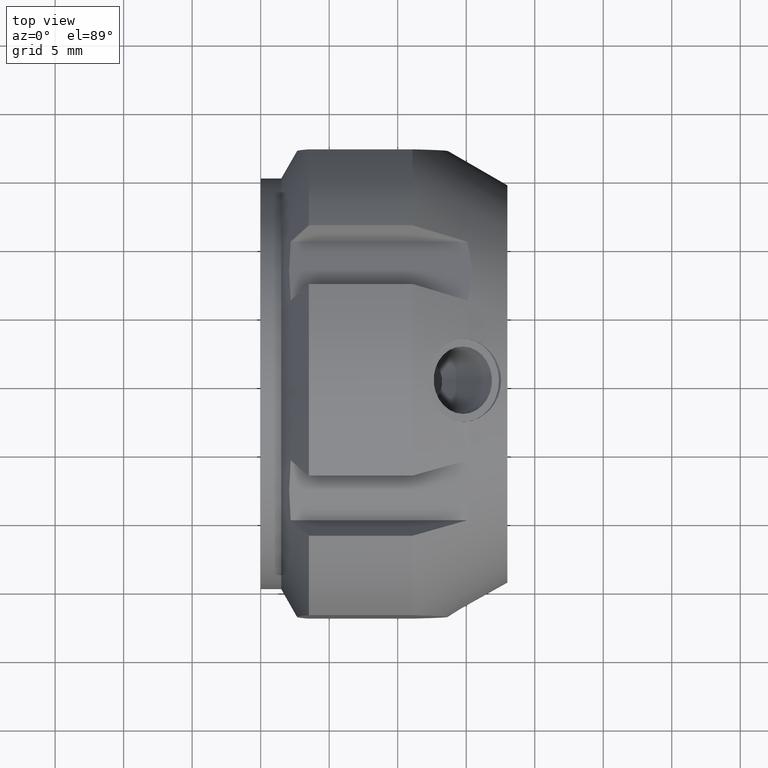
[diagram: clean part render]
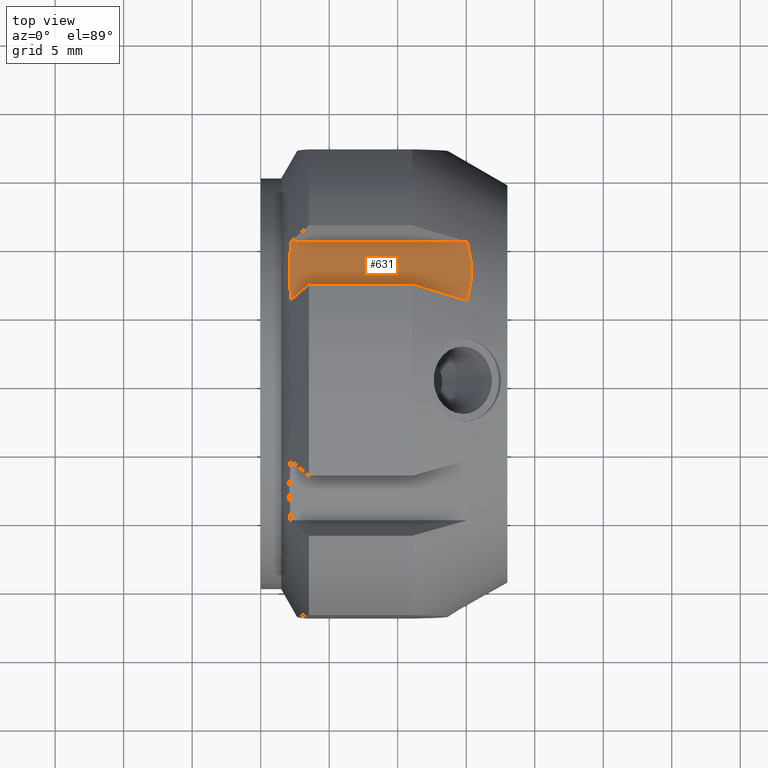
[diagram: same view with one face highlighted and labeled with its STEP entity id]
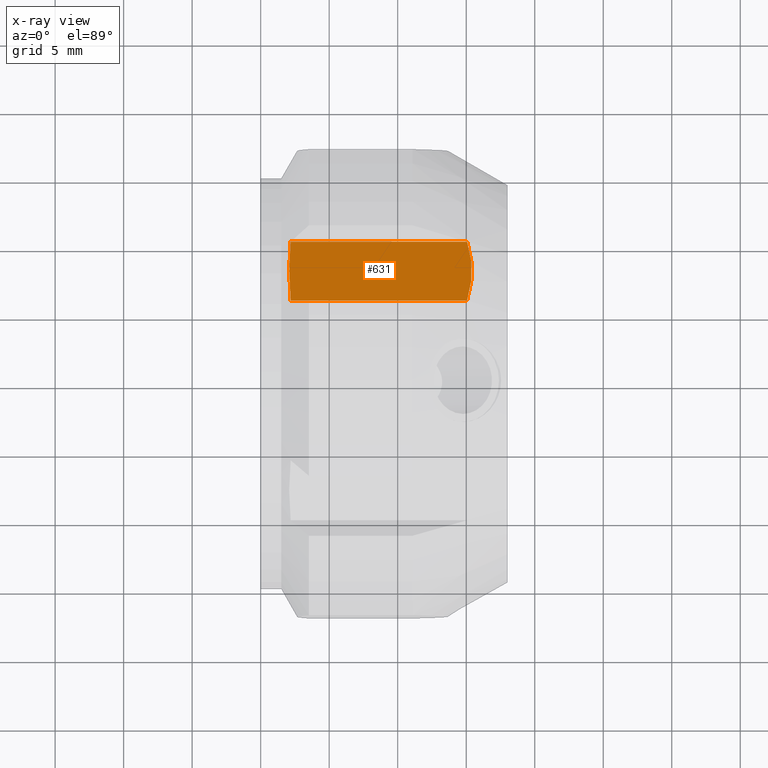
[diagram: x-ray of the same camera — body ghosted, the highlighted face saturated]
A machine part, top view. The second image highlights one B-rep face of the part: STEP entity #631.
The next image is the same camera in x-ray: the body ghosted, the highlighted face saturated — about 0% of this face is hidden behind the body in this view.
In plain terms, the highlighted planar face has unit normal (0, -0.5, -0.866).
Its self-contained STEP definition (entity closure, byte-faithful):
#472=CARTESIAN_POINT('',(2.189434013992775,5.834936490538904,15.106406460551016));
#473=VERTEX_POINT('',#472);
#487=CARTESIAN_POINT('',(2.189434013992775,10.165063509461094,12.606406460551018));
#488=VERTEX_POINT('',#487);
#489=CARTESIAN_POINT('',(2.189434013992775,5.834936490538904,15.106406460551014));
#490=CARTESIAN_POINT('',(1.966610180536219,8.000000000000002,13.856406460551016));
#491=CARTESIAN_POINT('',(2.189434013992775,10.165063509461094,12.606406460551018));
#499=(BOUNDED_CURVE()B_SPLINE_CURVE(2,(#489,#490,#491),.UNSPECIFIED.,.F.,.U.)B_SPLINE_CURVE_WITH_KNOTS((3,3),(0.668735930196167,1.21098036045339),.UNSPECIFIED.)CURVE()GEOMETRIC_REPRESENTATION_ITEM()RATIONAL_B_SPLINE_CURVE((1.07162376867309,1.084626231326906,1.07162376867309))REPRESENTATION_ITEM(''));
#500=EDGE_CURVE('',#473,#488,#499,.T.);
#594=CARTESIAN_POINT('',(0.0,5.834936490538904,15.106406460551016));
#595=DIRECTION('',(0.0,-0.5,-0.866025403784439));
#596=DIRECTION('',(0.0,0.866025403784439,-0.5));
#597=AXIS2_PLACEMENT_3D('',#594,#595,#596);
#598=PLANE('',#597);
#599=ORIENTED_EDGE('',*,*,#500,.F.);
#600=CARTESIAN_POINT('',(15.065672554237221,5.834936490538904,15.106406460551016));
#601=VERTEX_POINT('',#600);
#602=CARTESIAN_POINT('',(2.189434013992775,5.834936490538904,15.106406460551016));
#603=DIRECTION('',(1.0,0.0,0.0));
#604=VECTOR('',#603,12.876238540244445);
#605=LINE('',#602,#604);
#606=EDGE_CURVE('',#473,#601,#605,.T.);
#607=ORIENTED_EDGE('',*,*,#606,.T.);
#608=CARTESIAN_POINT('',(15.065672554237217,10.165063509461094,12.606406460551018));
#609=VERTEX_POINT('',#608);
#610=CARTESIAN_POINT('',(15.065672554237219,10.165063509461094,12.606406460551018));
#611=CARTESIAN_POINT('',(15.734144054606888,7.999999999999998,13.856406460551018));
#612=CARTESIAN_POINT('',(15.065672554237223,5.834936490538904,15.106406460551016));
#620=(BOUNDED_CURVE()B_SPLINE_CURVE(2,(#610,#611,#612),.UNSPECIFIED.,.F.,.U.)B_SPLINE_CURVE_WITH_KNOTS((3,3),(0.729099831313411,1.320290321878508),.UNSPECIFIED.)CURVE()GEOMETRIC_REPRESENTATION_ITEM()RATIONAL_B_SPLINE_CURVE((1.071623768673091,1.084626231326908,1.071623768673091))REPRESENTATION_ITEM(''));
#621=EDGE_CURVE('',#609,#601,#620,.T.);
#622=ORIENTED_EDGE('',*,*,#621,.F.);
#623=CARTESIAN_POINT('',(2.189434013992775,10.165063509461094,12.606406460551018));
#624=DIRECTION('',(1.0,0.0,0.0));
#625=VECTOR('',#624,12.876238540244442);
#626=LINE('',#623,#625);
#627=EDGE_CURVE('',#488,#609,#626,.T.);
#628=ORIENTED_EDGE('',*,*,#627,.F.);
#629=EDGE_LOOP('',(#599,#607,#622,#628));
#630=FACE_OUTER_BOUND('',#629,.T.);
#631=ADVANCED_FACE('',(#630),#598,.F.);